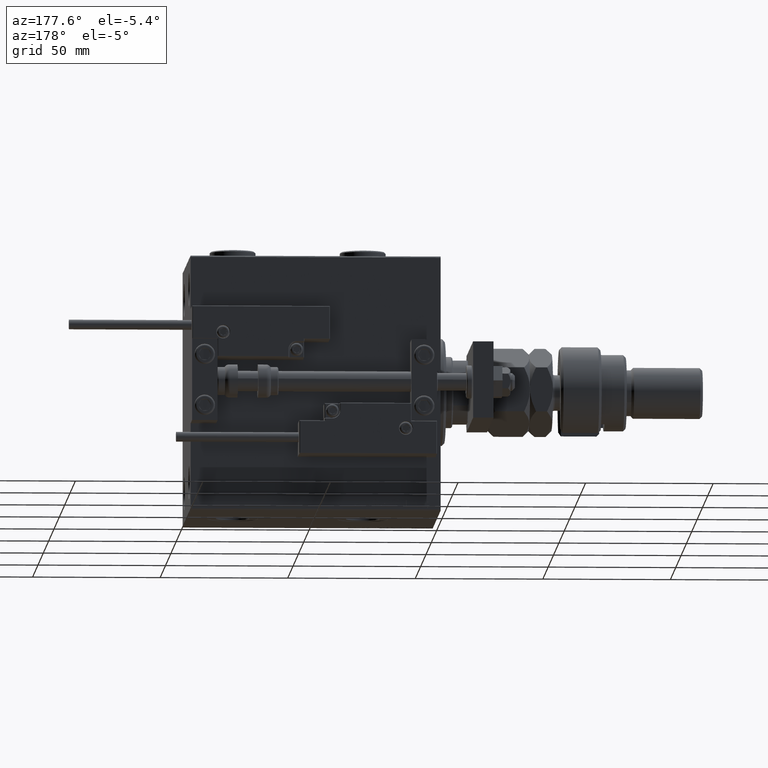
[diagram: clean part render]
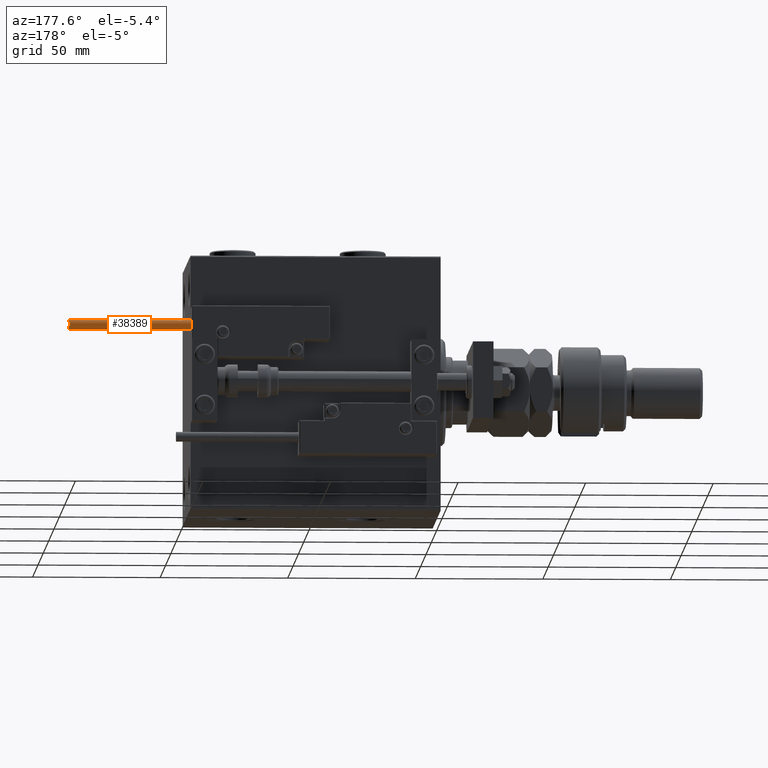
[diagram: same view with one face highlighted and labeled with its STEP entity id]
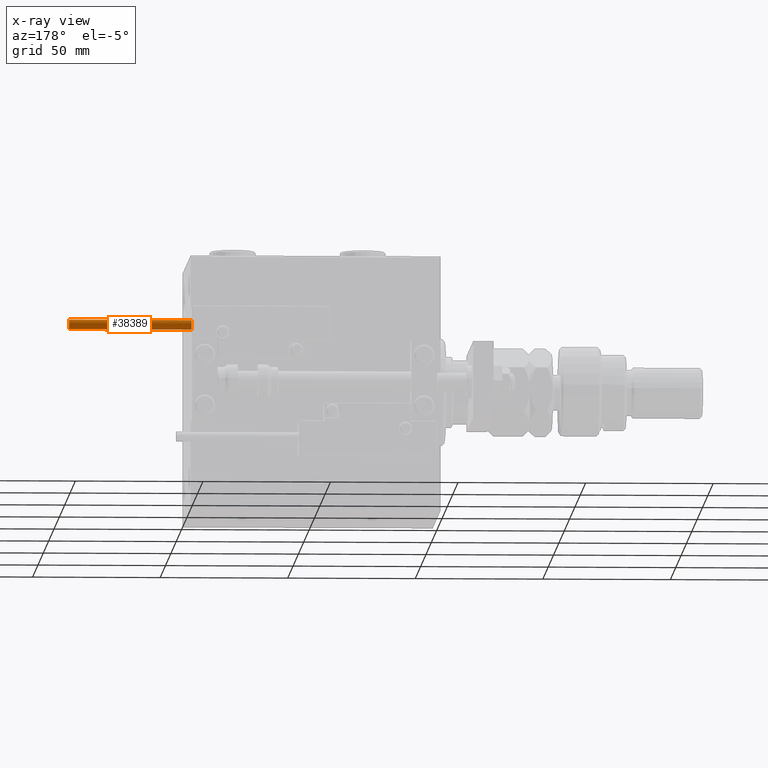
[diagram: x-ray of the same camera — body ghosted, the highlighted face saturated]
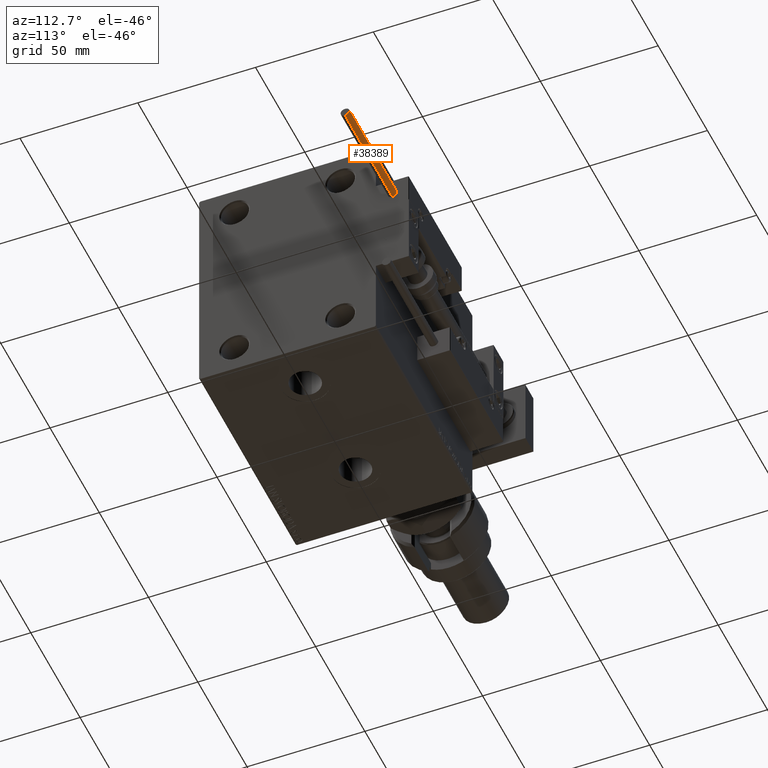
[diagram: same view with one face highlighted and labeled with its STEP entity id]
A machine part, auxiliary view. The second image highlights one B-rep face of the part: STEP entity #38389.
The next image is the same camera in x-ray: the body ghosted, the highlighted face saturated — about 0% of this face is hidden behind the body in this view.
A second angle (auxiliary view) of the same face is appended — the face is thin or edge-on in the first view.
In plain terms, the highlighted cylindrical surface (edge-blend (fillet) strip) has radius 1.9 mm, axis along (-1, -0, -0).
Its self-contained STEP definition (entity closure, byte-faithful):
#571 = CYLINDRICAL_SURFACE ( 'NONE', #29095, 1.899999999999999467 ) ;
#1076 = EDGE_LOOP ( 'NONE', ( #29310, #55195, #41155, #27886 ) ) ;
#7728 = DIRECTION ( 'NONE',  ( 0.000000000000000000, 0.000000000000000000, 1.000000000000000000 ) ) ;
#8390 = CIRCLE ( 'NONE', #25527, 1.899999999999999467 ) ;
#10890 = AXIS2_PLACEMENT_3D ( 'NONE', #38314, #7728, #20637 ) ;
#11496 = DIRECTION ( 'NONE',  ( -0.000000000000000000, -0.000000000000000000, -1.000000000000000000 ) ) ;
#15144 = LINE ( 'NONE', #41513, #47013 ) ;
#17699 = DIRECTION ( 'NONE',  ( -0.000000000000000000, -0.000000000000000000, -1.000000000000000000 ) ) ;
#18926 = CIRCLE ( 'NONE', #10890, 1.899999999999999467 ) ;
#20601 = LINE ( 'NONE', #37456, #31650 ) ;
#20637 = DIRECTION ( 'NONE',  ( 1.000000000000000000, 0.000000000000000000, 0.000000000000000000 ) ) ;
#20916 = CARTESIAN_POINT ( 'NONE',  ( 1.899999999999999467, 2.326828918379970872E-16, 48.00000000000000000 ) ) ;
#24108 = VERTEX_POINT ( 'NONE', #29646 ) ;
#25388 = VERTEX_POINT ( 'NONE', #38221 ) ;
#25527 = AXIS2_PLACEMENT_3D ( 'NONE', #34851, #35131, #31466 ) ;
#26384 = DIRECTION ( 'NONE',  ( -1.000000000000000000, 0.000000000000000000, 0.000000000000000000 ) ) ;
#27467 = EDGE_CURVE ( 'NONE', #25388, #24108, #18926, .T. ) ;
#27886 = ORIENTED_EDGE ( 'NONE', *, *, #37730, .F. ) ;
#29095 = AXIS2_PLACEMENT_3D ( 'NONE', #42703, #17699, #26384 ) ;
#29310 = ORIENTED_EDGE ( 'NONE', *, *, #35333, .F. ) ;
#29646 = CARTESIAN_POINT ( 'NONE',  ( -1.899999999999999467, 0.000000000000000000, 0.000000000000000000 ) ) ;
#30877 = FACE_OUTER_BOUND ( 'NONE', #1076, .T. ) ;
#31466 = DIRECTION ( 'NONE',  ( 1.000000000000000000, 0.000000000000000000, 0.000000000000000000 ) ) ;
#31650 = VECTOR ( 'NONE', #54574, 1000.000000000000000 ) ;
#32329 = EDGE_CURVE ( 'NONE', #44214, #25388, #20601, .T. ) ;
#34851 = CARTESIAN_POINT ( 'NONE',  ( 0.000000000000000000, 0.000000000000000000, 48.00000000000000000 ) ) ;
#35131 = DIRECTION ( 'NONE',  ( 0.000000000000000000, 0.000000000000000000, 1.000000000000000000 ) ) ;
#35333 = EDGE_CURVE ( 'NONE', #44214, #49598, #8390, .T. ) ;
#37456 = CARTESIAN_POINT ( 'NONE',  ( 1.899999999999999467, 2.326828918379970872E-16, 48.00000000000000000 ) ) ;
#37730 = EDGE_CURVE ( 'NONE', #49598, #24108, #15144, .T. ) ;
#38221 = CARTESIAN_POINT ( 'NONE',  ( 1.899999999999999467, 2.326828918379970872E-16, 0.000000000000000000 ) ) ;
#38314 = CARTESIAN_POINT ( 'NONE',  ( 0.000000000000000000, 0.000000000000000000, 0.000000000000000000 ) ) ;
#38389 = ADVANCED_FACE ( 'NONE', ( #30877 ), #571, .T. ) ;
#41155 = ORIENTED_EDGE ( 'NONE', *, *, #27467, .T. ) ;
#41513 = CARTESIAN_POINT ( 'NONE',  ( -1.899999999999999467, 0.000000000000000000, 48.00000000000000000 ) ) ;
#42703 = CARTESIAN_POINT ( 'NONE',  ( 0.000000000000000000, 0.000000000000000000, 48.00000000000000000 ) ) ;
#44214 = VERTEX_POINT ( 'NONE', #20916 ) ;
#47013 = VECTOR ( 'NONE', #11496, 1000.000000000000000 ) ;
#49310 = CARTESIAN_POINT ( 'NONE',  ( -1.899999999999999467, 0.000000000000000000, 48.00000000000000000 ) ) ;
#49598 = VERTEX_POINT ( 'NONE', #49310 ) ;
#54574 = DIRECTION ( 'NONE',  ( -0.000000000000000000, -0.000000000000000000, -1.000000000000000000 ) ) ;
#55195 = ORIENTED_EDGE ( 'NONE', *, *, #32329, .T. ) ;